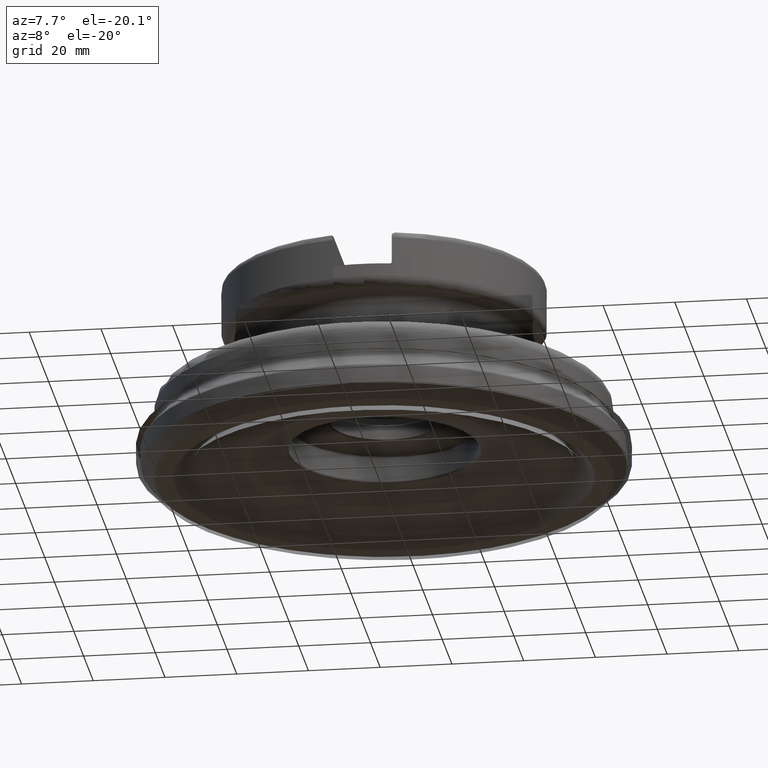
[diagram: clean part render]
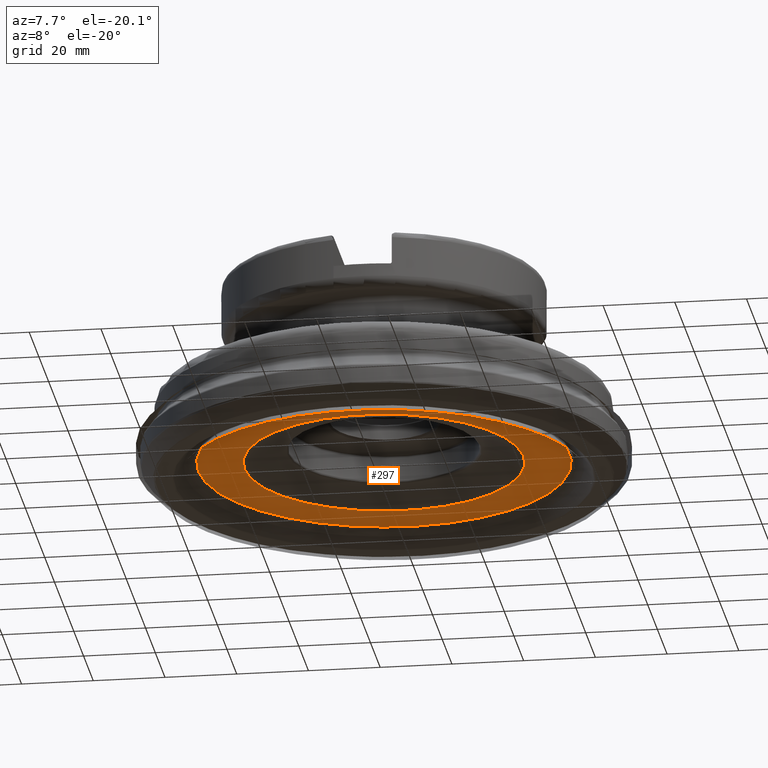
[diagram: same view with one face highlighted and labeled with its STEP entity id]
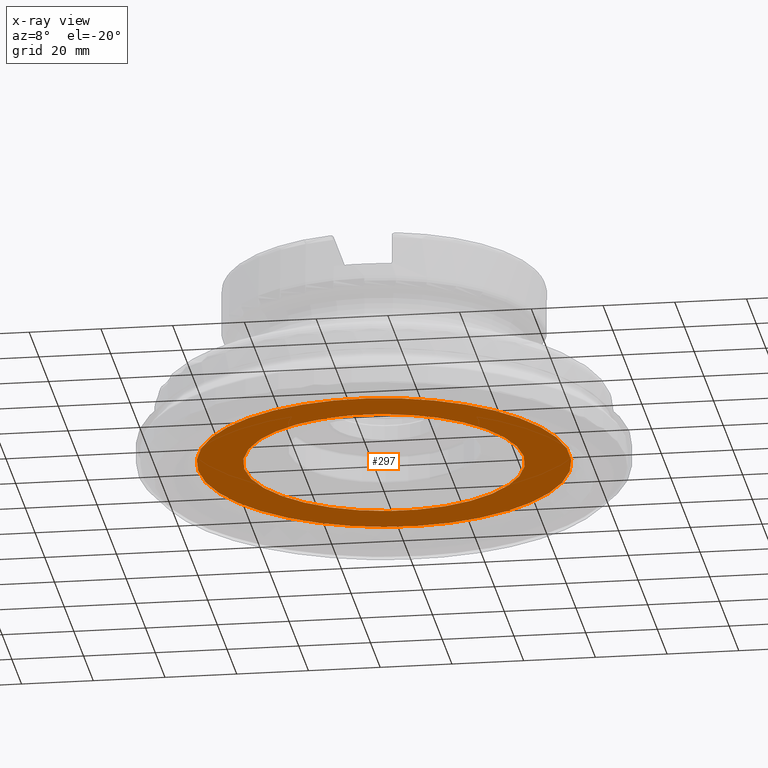
[diagram: x-ray of the same camera — body ghosted, the highlighted face saturated]
A machine part, auxiliary view. The second image highlights one B-rep face of the part: STEP entity #297.
The next image is the same camera in x-ray: the body ghosted, the highlighted face saturated — about 0% of this face is hidden behind the body in this view.
In plain terms, the highlighted planar face has unit normal (0, 0, 1).
Its self-contained STEP definition (entity closure, byte-faithful):
#158=PLANE('',#1162);
#297=ADVANCED_FACE('',(#387,#388),#158,.F.);
#387=FACE_BOUND('',#493,.T.);
#388=FACE_BOUND('',#494,.T.);
#493=EDGE_LOOP('',(#661));
#494=EDGE_LOOP('',(#662));
#661=ORIENTED_EDGE('',*,*,#957,.T.);
#662=ORIENTED_EDGE('',*,*,#958,.T.);
#860=VERTEX_POINT('',#1927);
#861=VERTEX_POINT('',#1929);
#957=EDGE_CURVE('',#860,#860,#1030,.T.);
#958=EDGE_CURVE('',#861,#861,#1031,.T.);
#1030=CIRCLE('',#1160,51.7916470981997);
#1031=CIRCLE('',#1161,38.9710475217705);
#1160=AXIS2_PLACEMENT_3D('',#1926,#1340,#1341);
#1161=AXIS2_PLACEMENT_3D('',#1928,#1342,#1343);
#1162=AXIS2_PLACEMENT_3D('',#1930,#1344,#1345);
#1340=DIRECTION('',(-1.17145536458253E-15,-1.33226762955019E-15,-1.));
#1341=DIRECTION('',(-1.,3.1641356201817E-15,1.17229949346984E-15));
#1342=DIRECTION('',(1.17145536458253E-15,1.33226762955019E-15,1.));
#1343=DIRECTION('',(-1.,3.1641356201817E-15,1.17959806155339E-15));
#1344=DIRECTION('',(1.17145536458253E-15,1.33226762955019E-15,1.));
#1345=DIRECTION('',(-1.,3.1641356201817E-15,1.17180570802233E-15));
#1926=CARTESIAN_POINT('',(6.37815725052103E-15,7.25372276055795E-15,5.44464385358294));
#1927=CARTESIAN_POINT('',(-51.7916470981996,1.71129518171851E-13,5.44464385358301));
#1928=CARTESIAN_POINT('',(6.37815725052103E-15,7.25372276055795E-15,5.44464385358294));
#1929=CARTESIAN_POINT('',(-38.9710475217705,1.30563402379986E-13,5.44464385358299));
#1930=CARTESIAN_POINT('',(-1.1448581234024E-13,-38.1981002394016,5.444643853583));